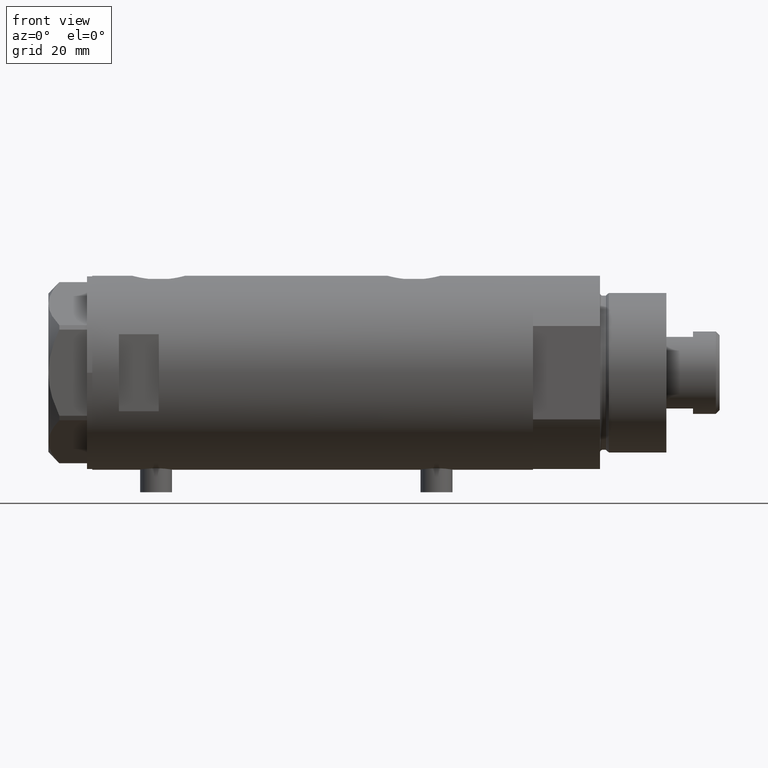
[diagram: clean part render]
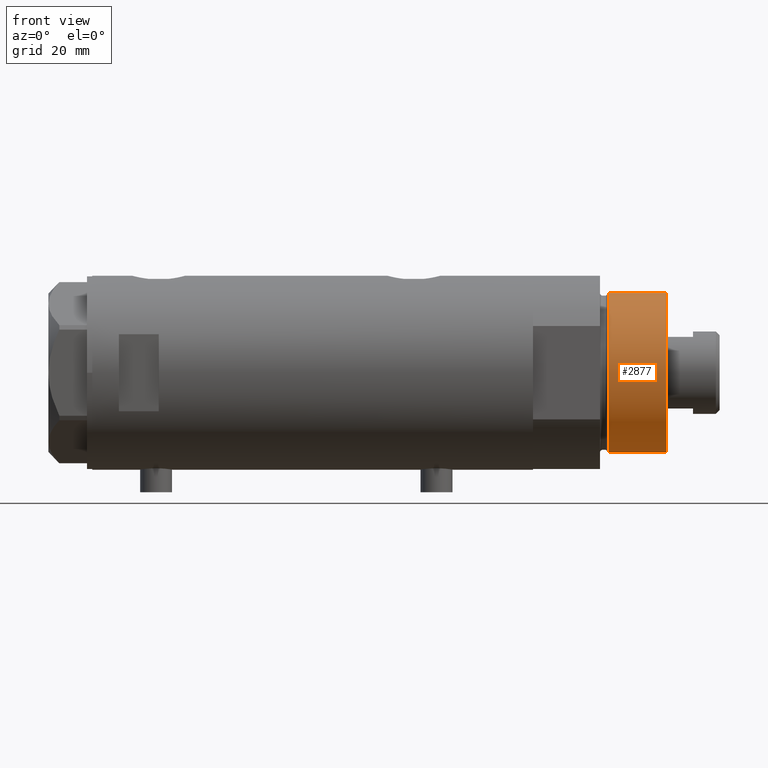
[diagram: same view with one face highlighted and labeled with its STEP entity id]
A machine part, front view. The second image highlights one B-rep face of the part: STEP entity #2877.
In plain terms, the highlighted cylindrical surface (partial cylindrical patch) has radius 30 mm, axis along (-1, -0, 0).
Its self-contained STEP definition (entity closure, byte-faithful):
#20 = VERTEX_POINT ( 'NONE', #429 ) ;
#36 = DIRECTION ( 'NONE',  ( -0.000000000000000000, -0.000000000000000000, -1.000000000000000000 ) ) ;
#201 = DIRECTION ( 'NONE',  ( -0.000000000000000000, -0.000000000000000000, -1.000000000000000000 ) ) ;
#254 = ORIENTED_EDGE ( 'NONE', *, *, #881, .T. ) ;
#307 = CARTESIAN_POINT ( 'NONE',  ( -30.00000000000000000, 0.000000000000000000, 28.57384048104054486 ) ) ;
#312 = EDGE_CURVE ( 'NONE', #1519, #20, #3914, .T. ) ;
#429 = CARTESIAN_POINT ( 'NONE',  ( 30.00000000000000000, 3.673940397442058389E-15, 28.57384048104054486 ) ) ;
#492 = VERTEX_POINT ( 'NONE', #1572 ) ;
#548 = LINE ( 'NONE', #3709, #3466 ) ;
#619 = EDGE_CURVE ( 'NONE', #3937, #492, #2169, .T. ) ;
#672 = DIRECTION ( 'NONE',  ( 0.000000000000000000, 0.000000000000000000, 1.000000000000000000 ) ) ;
#683 = CARTESIAN_POINT ( 'NONE',  ( 0.000000000000000000, 0.000000000000000000, 28.57384048104054486 ) ) ;
#881 = EDGE_CURVE ( 'NONE', #3937, #1519, #548, .T. ) ;
#907 = CARTESIAN_POINT ( 'NONE',  ( 0.000000000000000000, 0.000000000000000000, 50.19999999999999574 ) ) ;
#1018 = CARTESIAN_POINT ( 'NONE',  ( 0.000000000000000000, 0.000000000000000000, 50.19999999999999574 ) ) ;
#1257 = FACE_OUTER_BOUND ( 'NONE', #3905, .T. ) ;
#1402 = AXIS2_PLACEMENT_3D ( 'NONE', #907, #201, #1471 ) ;
#1471 = DIRECTION ( 'NONE',  ( -1.000000000000000000, 0.000000000000000000, 0.000000000000000000 ) ) ;
#1519 = VERTEX_POINT ( 'NONE', #307 ) ;
#1572 = CARTESIAN_POINT ( 'NONE',  ( 30.00000000000000000, 3.673940397442058389E-15, 50.19999999999999574 ) ) ;
#1705 = DIRECTION ( 'NONE',  ( 1.000000000000000000, 0.000000000000000000, 0.000000000000000000 ) ) ;
#1717 = DIRECTION ( 'NONE',  ( 1.000000000000000000, 0.000000000000000000, 0.000000000000000000 ) ) ;
#1767 = LINE ( 'NONE', #3529, #2835 ) ;
#2169 = CIRCLE ( 'NONE', #3838, 30.00000000000000000 ) ;
#2601 = AXIS2_PLACEMENT_3D ( 'NONE', #683, #2789, #1705 ) ;
#2789 = DIRECTION ( 'NONE',  ( -0.000000000000000000, -0.000000000000000000, 1.000000000000000000 ) ) ;
#2796 = ORIENTED_EDGE ( 'NONE', *, *, #312, .T. ) ;
#2804 = ORIENTED_EDGE ( 'NONE', *, *, #619, .F. ) ;
#2835 = VECTOR ( 'NONE', #36, 1000.000000000000000 ) ;
#2877 = ADVANCED_FACE ( 'NONE', ( #1257 ), #3307, .T. ) ;
#3141 = CARTESIAN_POINT ( 'NONE',  ( -30.00000000000000000, 0.000000000000000000, 50.19999999999999574 ) ) ;
#3307 = CYLINDRICAL_SURFACE ( 'NONE', #1402, 30.00000000000000000 ) ;
#3466 = VECTOR ( 'NONE', #3729, 1000.000000000000000 ) ;
#3529 = CARTESIAN_POINT ( 'NONE',  ( 30.00000000000000000, 3.673940397442058389E-15, 50.19999999999999574 ) ) ;
#3679 = EDGE_CURVE ( 'NONE', #492, #20, #1767, .T. ) ;
#3709 = CARTESIAN_POINT ( 'NONE',  ( -30.00000000000000000, 0.000000000000000000, 50.19999999999999574 ) ) ;
#3729 = DIRECTION ( 'NONE',  ( -0.000000000000000000, -0.000000000000000000, -1.000000000000000000 ) ) ;
#3838 = AXIS2_PLACEMENT_3D ( 'NONE', #1018, #672, #1717 ) ;
#3905 = EDGE_LOOP ( 'NONE', ( #4027, #2804, #254, #2796 ) ) ;
#3914 = CIRCLE ( 'NONE', #2601, 30.00000000000000000 ) ;
#3937 = VERTEX_POINT ( 'NONE', #3141 ) ;
#4027 = ORIENTED_EDGE ( 'NONE', *, *, #3679, .F. ) ;